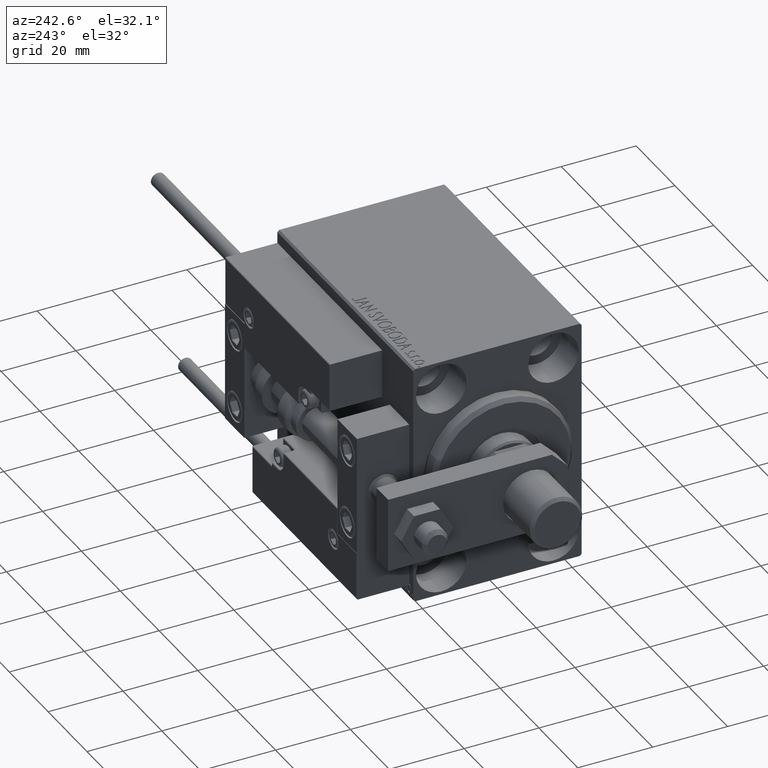
[diagram: clean part render]
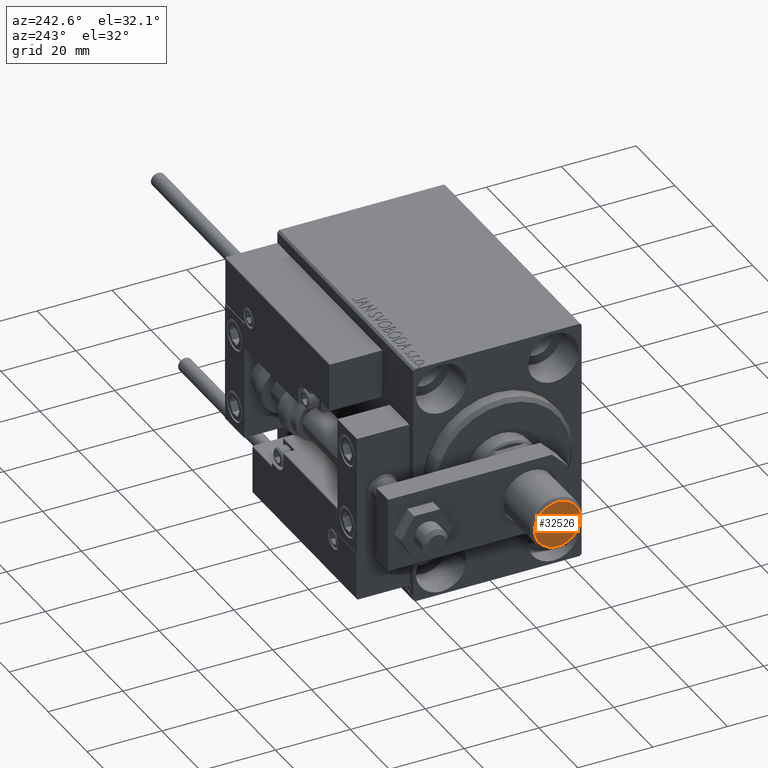
[diagram: same view with one face highlighted and labeled with its STEP entity id]
A machine part, auxiliary view. The second image highlights one B-rep face of the part: STEP entity #32526.
In plain terms, the highlighted planar face has unit normal (1, 0, 0).
Its self-contained STEP definition (entity closure, byte-faithful):
#6231 = VERTEX_POINT ( 'NONE', #21716 ) ;
#9060 = DIRECTION ( 'NONE',  ( 1.000000000000000000, 0.000000000000000000, 0.000000000000000000 ) ) ;
#9763 = FACE_OUTER_BOUND ( 'NONE', #31854, .T. ) ;
#15998 = AXIS2_PLACEMENT_3D ( 'NONE', #46501, #34972, #28718 ) ;
#16630 = EDGE_CURVE ( 'NONE', #6231, #48242, #45849, .T. ) ;
#17733 = CARTESIAN_POINT ( 'NONE',  ( 0.000000000000000000, 0.000000000000000000, 0.000000000000000000 ) ) ;
#18444 = CIRCLE ( 'NONE', #15998, 6.199999999999999289 ) ;
#19403 = ORIENTED_EDGE ( 'NONE', *, *, #25735, .T. ) ;
#20419 = AXIS2_PLACEMENT_3D ( 'NONE', #35578, #47837, #9060 ) ;
#21716 = CARTESIAN_POINT ( 'NONE',  ( 6.199999999999999289, 0.000000000000000000, 0.000000000000000000 ) ) ;
#25735 = EDGE_CURVE ( 'NONE', #48242, #6231, #18444, .T. ) ;
#28718 = DIRECTION ( 'NONE',  ( 1.000000000000000000, 0.000000000000000000, 0.000000000000000000 ) ) ;
#30070 = DIRECTION ( 'NONE',  ( 0.000000000000000000, 0.000000000000000000, 1.000000000000000000 ) ) ;
#31854 = EDGE_LOOP ( 'NONE', ( #46818, #19403 ) ) ;
#32226 = CARTESIAN_POINT ( 'NONE',  ( -6.199999999999999289, 8.082668874372528061E-16, 0.000000000000000000 ) ) ;
#32526 = ADVANCED_FACE ( 'NONE', ( #9763 ), #37531, .F. ) ;
#34972 = DIRECTION ( 'NONE',  ( -0.000000000000000000, -0.000000000000000000, -1.000000000000000000 ) ) ;
#35578 = CARTESIAN_POINT ( 'NONE',  ( 0.000000000000000000, 0.000000000000000000, 0.000000000000000000 ) ) ;
#37531 = PLANE ( 'NONE',  #40064 ) ;
#40064 = AXIS2_PLACEMENT_3D ( 'NONE', #17733, #30070, #49545 ) ;
#45849 = CIRCLE ( 'NONE', #20419, 6.199999999999999289 ) ;
#46501 = CARTESIAN_POINT ( 'NONE',  ( 0.000000000000000000, 0.000000000000000000, 0.000000000000000000 ) ) ;
#46818 = ORIENTED_EDGE ( 'NONE', *, *, #16630, .T. ) ;
#47837 = DIRECTION ( 'NONE',  ( -0.000000000000000000, -0.000000000000000000, -1.000000000000000000 ) ) ;
#48242 = VERTEX_POINT ( 'NONE', #32226 ) ;
#49545 = DIRECTION ( 'NONE',  ( 1.000000000000000000, 0.000000000000000000, -0.000000000000000000 ) ) ;